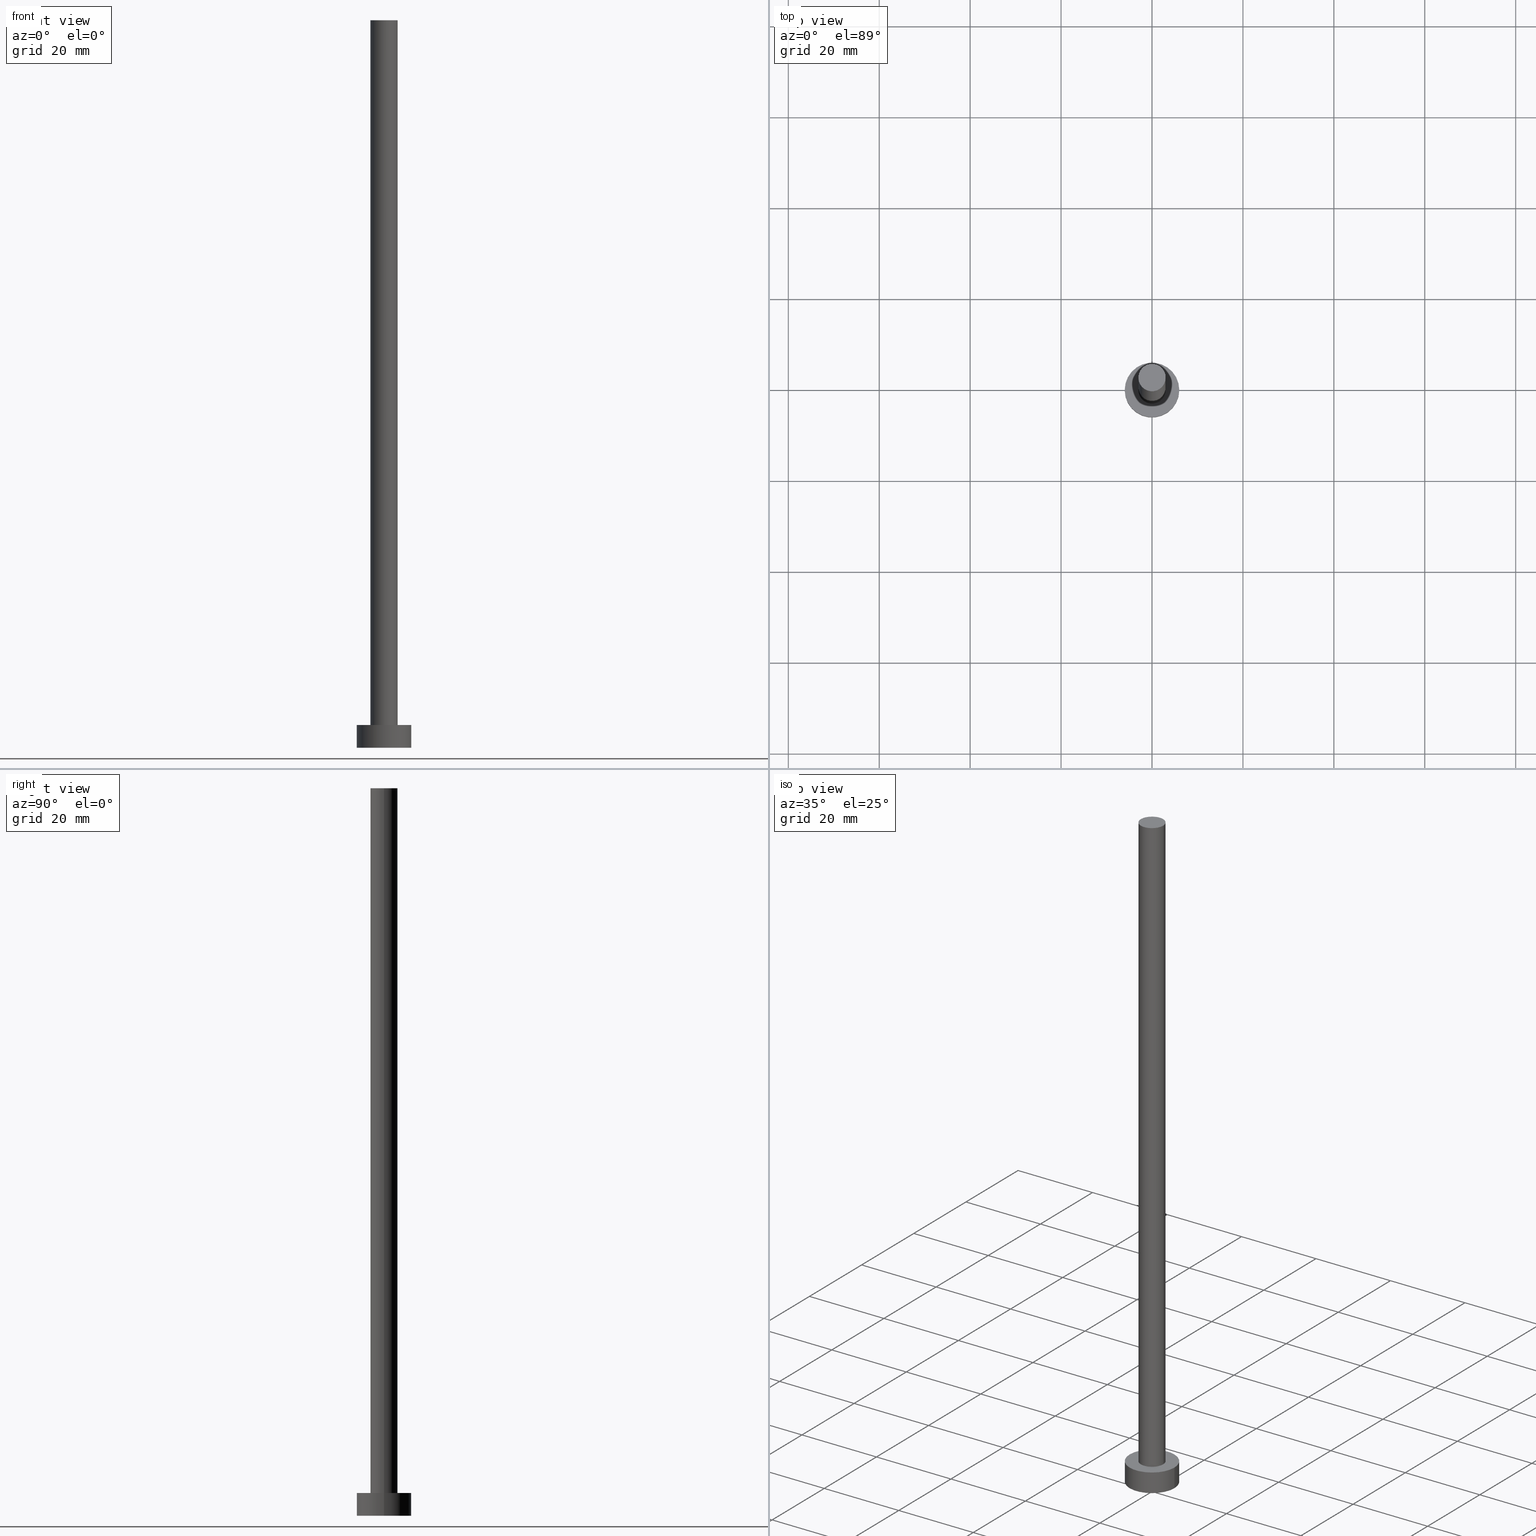
[diagram: canonical four-view strip — front | top / right | iso, engineering-drawing reading convention]
A machine part, canonical four-view strip (front | top / right | iso — engineering-drawing reading convention). The complete STEP part file that produces these views, byte-faithful:
ISO-10303-21;
HEADER;
FILE_DESCRIPTION (( 'STEP AP203' ),
    '1' );
FILE_NAME ('2290.STEP',
    '2023-02-13T15:45:25',
    ( '' ),
    ( '' ),
    'SwSTEP 2.0',
    'SolidWorks 2019',
    '' );
FILE_SCHEMA (( 'CONFIG_CONTROL_DESIGN' ));
ENDSEC;

DATA;
#1 = CARTESIAN_POINT ( 'NONE',  ( 6.000000000000000888, 7.347880794884120722E-16, 0.000000000000000000 ) ) ;
#2 = FACE_BOUND ( 'NONE', #192, .T. ) ;
#3 = DIRECTION ( 'NONE',  ( -1.000000000000000000, 0.000000000000000000, 0.000000000000000000 ) ) ;
#4 = FACE_OUTER_BOUND ( 'NONE', #92, .T. ) ;
#5 = CARTESIAN_POINT ( 'NONE',  ( 3.000000000000000444, 3.673940397442060361E-16, 160.0000000000000000 ) ) ;
#6 = LINE ( 'NONE', #248, #228 ) ;
#7 = PERSON_AND_ORGANIZATION_ROLE ( 'creator' ) ;
#8 = PERSON_AND_ORGANIZATION_ROLE ( 'design_owner' ) ;
#9 = DATE_AND_TIME ( #169, #68 ) ;
#10 = EDGE_CURVE ( 'NONE', #171, #114, #74, .T. ) ;
#11 = CALENDAR_DATE ( 2023, 13, 2 ) ;
#12 = VERTEX_POINT ( 'NONE', #1 ) ;
#13 = DATE_AND_TIME ( #11, #123 ) ;
#14 = CC_DESIGN_PERSON_AND_ORGANIZATION_ASSIGNMENT ( #89, #188, ( #60 ) ) ;
#15 = EDGE_LOOP ( 'NONE', ( #132, #34 ) ) ;
#16 = PERSON_AND_ORGANIZATION_ROLE ( 'classification_officer' ) ;
#17 = DIRECTION ( 'NONE',  ( 0.000000000000000000, 0.000000000000000000, 1.000000000000000000 ) ) ;
#18 = DIRECTION ( 'NONE',  ( -0.000000000000000000, -0.000000000000000000, -1.000000000000000000 ) ) ;
#19 = EDGE_CURVE ( 'NONE', #136, #211, #238, .T. ) ;
#20 = CARTESIAN_POINT ( 'NONE',  ( -3.000000000000000444, 0.000000000000000000, 5.000000000000000000 ) ) ;
#21 = DIRECTION ( 'NONE',  ( 0.000000000000000000, 0.000000000000000000, 1.000000000000000000 ) ) ;
#22 = CARTESIAN_POINT ( 'NONE',  ( 0.000000000000000000, 0.000000000000000000, 5.000000000000000000 ) ) ;
#23 = LINE ( 'NONE', #177, #244 ) ;
#24 = APPROVAL_DATE_TIME ( #30, #35 ) ;
#25 = SECURITY_CLASSIFICATION ( '', '', #210 ) ;
#26 = PERSON_AND_ORGANIZATION ( #124, #31 ) ;
#27 = LINE ( 'NONE', #166, #187 ) ;
#28 = CC_DESIGN_PERSON_AND_ORGANIZATION_ASSIGNMENT ( #231, #16, ( #25 ) ) ;
#29 = APPROVAL_STATUS ( 'not_yet_approved' ) ;
#30 = DATE_AND_TIME ( #131, #42 ) ;
#31 = ORGANIZATION ( 'NEUR�EN�', 'NEUR�EN�', '' ) ;
#32 = EDGE_LOOP ( 'NONE', ( #195, #213 ) ) ;
#33 = PERSON_AND_ORGANIZATION ( #124, #31 ) ;
#34 = ORIENTED_EDGE ( 'NONE', *, *, #19, .T. ) ;
#35 = APPROVAL ( #29, 'NEUR�EN�' ) ;
#36 = ORIENTED_EDGE ( 'NONE', *, *, #240, .T. ) ;
#37 = CARTESIAN_POINT ( 'NONE',  ( -3.000000000000000444, 0.000000000000000000, 160.0000000000000000 ) ) ;
#38 = AXIS2_PLACEMENT_3D ( 'NONE', #22, #98, #183 ) ;
#39 = DIRECTION ( 'NONE',  ( -1.000000000000000000, 0.000000000000000000, 0.000000000000000000 ) ) ;
#40 = DIRECTION ( 'NONE',  ( -0.000000000000000000, -0.000000000000000000, -1.000000000000000000 ) ) ;
#41 = DIRECTION ( 'NONE',  ( -0.000000000000000000, -0.000000000000000000, -1.000000000000000000 ) ) ;
#42 = LOCAL_TIME ( 16, 45, 25.00000000000000000, #186 ) ;
#43 = DIRECTION ( 'NONE',  ( -0.000000000000000000, -0.000000000000000000, -1.000000000000000000 ) ) ;
#44 = EDGE_CURVE ( 'NONE', #12, #176, #69, .T. ) ;
#45 = DIRECTION ( 'NONE',  ( 1.000000000000000000, 0.000000000000000000, -0.000000000000000000 ) ) ;
#46 = AXIS2_PLACEMENT_3D ( 'NONE', #142, #99, #102 ) ;
#47 = DIRECTION ( 'NONE',  ( 1.000000000000000000, 0.000000000000000000, 0.000000000000000000 ) ) ;
#48 = DIRECTION ( 'NONE',  ( -0.000000000000000000, -0.000000000000000000, -1.000000000000000000 ) ) ;
#49 = DATE_AND_TIME ( #108, #141 ) ;
#50 = APPROVAL_PERSON_ORGANIZATION ( #33, #149, #73 ) ;
#51 = ORIENTED_EDGE ( 'NONE', *, *, #19, .F. ) ;
#52 = ADVANCED_FACE ( 'NONE', ( #219 ), #215, .T. ) ;
#53 = EDGE_CURVE ( 'NONE', #176, #12, #225, .T. ) ;
#54 = ORIENTED_EDGE ( 'NONE', *, *, #247, .T. ) ;
#55 = CIRCLE ( 'NONE', #122, 6.000000000000000888 ) ;
#56 = EDGE_LOOP ( 'NONE', ( #51, #113, #234, #255 ) ) ;
#57 = CARTESIAN_POINT ( 'NONE',  ( 0.000000000000000000, 0.000000000000000000, 5.000000000000000000 ) ) ;
#58 = UNCERTAINTY_MEASURE_WITH_UNIT (LENGTH_MEASURE( 1.000000000000000082E-05 ), #223, 'distance_accuracy_value', 'NONE');
#59 = DIRECTION ( 'NONE',  ( 1.000000000000000000, 0.000000000000000000, 0.000000000000000000 ) ) ;
#60 = PRODUCT_DEFINITION ( 'NEZN�M�', '', #64, #165 ) ;
#61 = FACE_OUTER_BOUND ( 'NONE', #32, .T. ) ;
#62 = DIRECTION ( 'NONE',  ( 1.000000000000000000, 0.000000000000000000, 0.000000000000000000 ) ) ;
#63 = CARTESIAN_POINT ( 'NONE',  ( 0.000000000000000000, 0.000000000000000000, 0.000000000000000000 ) ) ;
#64 = PRODUCT_DEFINITION_FORMATION_WITH_SPECIFIED_SOURCE ( 'LIBOVOLN�', '', #227, .NOT_KNOWN. ) ;
#65 = COORDINATED_UNIVERSAL_TIME_OFFSET ( 1, 0, .AHEAD. ) ;
#66 = DIRECTION ( 'NONE',  ( 0.000000000000000000, 0.000000000000000000, 1.000000000000000000 ) ) ;
#67 = EDGE_CURVE ( 'NONE', #136, #12, #116, .T. ) ;
#68 = LOCAL_TIME ( 16, 45, 25.00000000000000000, #65 ) ;
#69 = CIRCLE ( 'NONE', #250, 6.000000000000000888 ) ;
#70 = PERSON_AND_ORGANIZATION_ROLE ( 'design_supplier' ) ;
#71 = CARTESIAN_POINT ( 'NONE',  ( 0.000000000000000000, 0.000000000000000000, 0.000000000000000000 ) ) ;
#72 = COORDINATED_UNIVERSAL_TIME_OFFSET ( 1, 0, .AHEAD. ) ;
#73 = APPROVAL_ROLE ( '' ) ;
#74 = CIRCLE ( 'NONE', #148, 3.000000000000000444 ) ;
#75 = VERTEX_POINT ( 'NONE', #157 ) ;
#76 = ORIENTED_EDGE ( 'NONE', *, *, #163, .F. ) ;
#77 = ADVANCED_FACE ( 'NONE', ( #140 ), #79, .F. ) ;
#78 = ORIENTED_EDGE ( 'NONE', *, *, #90, .F. ) ;
#79 = PLANE ( 'NONE',  #137 ) ;
#80 = CARTESIAN_POINT ( 'NONE',  ( 6.000000000000000888, 7.347880794884120722E-16, 5.000000000000000000 ) ) ;
#81 = ADVANCED_FACE ( 'NONE', ( #2, #100 ), #199, .T. ) ;
#82 = CARTESIAN_POINT ( 'NONE',  ( 0.000000000000000000, 0.000000000000000000, 0.000000000000000000 ) ) ;
#83 = LOCAL_TIME ( 16, 45, 25.00000000000000000, #72 ) ;
#84 = CIRCLE ( 'NONE', #151, 3.000000000000000444 ) ;
#85 = CYLINDRICAL_SURFACE ( 'NONE', #243, 3.000000000000000444 ) ;
#86 = CC_DESIGN_PERSON_AND_ORGANIZATION_ASSIGNMENT ( #203, #8, ( #227 ) ) ;
#87 = CARTESIAN_POINT ( 'NONE',  ( 0.000000000000000000, 0.000000000000000000, 5.000000000000000000 ) ) ;
#88 = APPLICATION_PROTOCOL_DEFINITION ( 'international standard', 'config_control_design', 1994, #201 ) ;
#89 = PERSON_AND_ORGANIZATION ( #124, #31 ) ;
#90 = EDGE_CURVE ( 'NONE', #211, #136, #55, .T. ) ;
#91 = PERSON_AND_ORGANIZATION ( #124, #31 ) ;
#92 = EDGE_LOOP ( 'NONE', ( #134, #138, #173, #36 ) ) ;
#93 = APPROVAL_STATUS ( 'not_yet_approved' ) ;
#94 = AXIS2_PLACEMENT_3D ( 'NONE', #120, #43, #162 ) ;
#95 = EDGE_LOOP ( 'NONE', ( #208, #78, #54, #194 ) ) ;
#96 = AXIS2_PLACEMENT_3D ( 'NONE', #145, #66, #45 ) ;
#97 = ADVANCED_FACE ( 'NONE', ( #4 ), #85, .T. ) ;
#98 = DIRECTION ( 'NONE',  ( -0.000000000000000000, -0.000000000000000000, -1.000000000000000000 ) ) ;
#99 = DIRECTION ( 'NONE',  ( 0.000000000000000000, 0.000000000000000000, 1.000000000000000000 ) ) ;
#100 = FACE_OUTER_BOUND ( 'NONE', #15, .T. ) ;
#101 = CC_DESIGN_SECURITY_CLASSIFICATION ( #25, ( #64 ) ) ;
#102 = DIRECTION ( 'NONE',  ( 1.000000000000000000, 0.000000000000000000, 0.000000000000000000 ) ) ;
#103 = DIRECTION ( 'NONE',  ( 0.000000000000000000, 0.000000000000000000, 1.000000000000000000 ) ) ;
#104 = APPROVAL_ROLE ( '' ) ;
#105 = AXIS2_PLACEMENT_3D ( 'NONE', #129, #147, #251 ) ;
#106 = APPROVAL ( #107, 'NEUR�EN�' ) ;
#107 = APPROVAL_STATUS ( 'not_yet_approved' ) ;
#108 = CALENDAR_DATE ( 2023, 13, 2 ) ;
#109 = DIRECTION ( 'NONE',  ( 0.000000000000000000, 0.000000000000000000, 1.000000000000000000 ) ) ;
#110 = SHAPE_DEFINITION_REPRESENTATION ( #170, #252 ) ;
#111 = ORIENTED_EDGE ( 'NONE', *, *, #53, .F. ) ;
#112 = AXIS2_PLACEMENT_3D ( 'NONE', #63, #125, #62 ) ;
#113 = ORIENTED_EDGE ( 'NONE', *, *, #67, .T. ) ;
#114 = VERTEX_POINT ( 'NONE', #37 ) ;
#115 = CLOSED_SHELL ( 'NONE', ( #52, #126, #130, #81, #77, #97, #216 ) ) ;
#116 = LINE ( 'NONE', #143, #212 ) ;
#117 = CIRCLE ( 'NONE', #105, 3.000000000000000444 ) ;
#118 = CARTESIAN_POINT ( 'NONE',  ( 0.000000000000000000, 0.000000000000000000, 5.000000000000000000 ) ) ;
#119 = CC_DESIGN_PERSON_AND_ORGANIZATION_ASSIGNMENT ( #249, #70, ( #64 ) ) ;
#120 = CARTESIAN_POINT ( 'NONE',  ( 0.000000000000000000, 0.000000000000000000, 160.0000000000000000 ) ) ;
#121 = DIRECTION ( 'NONE',  ( 1.000000000000000000, 0.000000000000000000, 0.000000000000000000 ) ) ;
#122 = AXIS2_PLACEMENT_3D ( 'NONE', #57, #182, #59 ) ;
#123 = LOCAL_TIME ( 16, 45, 25.00000000000000000, #207 ) ;
#124 = PERSON ( 'NEUR�EN�', 'NEUR�EN�', 'NEUR�EN�', ('NEUR�EN�'), ('NEUR�EN�'), ('NEUR�EN�') ) ;
#125 = DIRECTION ( 'NONE',  ( 0.000000000000000000, 0.000000000000000000, 1.000000000000000000 ) ) ;
#126 = ADVANCED_FACE ( 'NONE', ( #239 ), #197, .T. ) ;
#127 = APPLICATION_PROTOCOL_DEFINITION ( 'international standard', 'config_control_design', 1994, #237 ) ;
#128 =( NAMED_UNIT ( * ) SI_UNIT ( $, .STERADIAN. ) SOLID_ANGLE_UNIT ( ) );
#129 = CARTESIAN_POINT ( 'NONE',  ( 0.000000000000000000, 0.000000000000000000, 5.000000000000000000 ) ) ;
#130 = ADVANCED_FACE ( 'NONE', ( #202 ), #200, .T. ) ;
#131 = CALENDAR_DATE ( 2023, 13, 2 ) ;
#132 = ORIENTED_EDGE ( 'NONE', *, *, #90, .T. ) ;
#133 = DATE_AND_TIME ( #253, #83 ) ;
#134 = ORIENTED_EDGE ( 'NONE', *, *, #135, .F. ) ;
#135 = EDGE_CURVE ( 'NONE', #171, #75, #23, .T. ) ;
#136 = VERTEX_POINT ( 'NONE', #80 ) ;
#137 = AXIS2_PLACEMENT_3D ( 'NONE', #82, #21, #236 ) ;
#138 = ORIENTED_EDGE ( 'NONE', *, *, #184, .F. ) ;
#139 = DIRECTION ( 'NONE',  ( 0.000000000000000000, 0.000000000000000000, 1.000000000000000000 ) ) ;
#140 = FACE_OUTER_BOUND ( 'NONE', #153, .T. ) ;
#141 = LOCAL_TIME ( 16, 45, 25.00000000000000000, #164 ) ;
#142 = CARTESIAN_POINT ( 'NONE',  ( 0.000000000000000000, 0.000000000000000000, 5.000000000000000000 ) ) ;
#143 = CARTESIAN_POINT ( 'NONE',  ( 6.000000000000000888, 7.347880794884120722E-16, 5.000000000000000000 ) ) ;
#144 = CARTESIAN_POINT ( 'NONE',  ( 0.000000000000000000, 0.000000000000000000, 5.000000000000000000 ) ) ;
#145 = CARTESIAN_POINT ( 'NONE',  ( 0.000000000000000000, 0.000000000000000000, 160.0000000000000000 ) ) ;
#146 =( NAMED_UNIT ( * ) PLANE_ANGLE_UNIT ( ) SI_UNIT ( $, .RADIAN. ) );
#147 = DIRECTION ( 'NONE',  ( 0.000000000000000000, 0.000000000000000000, 1.000000000000000000 ) ) ;
#148 = AXIS2_PLACEMENT_3D ( 'NONE', #196, #17, #150 ) ;
#149 = APPROVAL ( #93, 'NEUR�EN�' ) ;
#150 = DIRECTION ( 'NONE',  ( 1.000000000000000000, 0.000000000000000000, 0.000000000000000000 ) ) ;
#151 = AXIS2_PLACEMENT_3D ( 'NONE', #158, #103, #198 ) ;
#152 = APPROVAL_DATE_TIME ( #13, #149 ) ;
#153 = EDGE_LOOP ( 'NONE', ( #111, #191 ) ) ;
#154 = MANIFOLD_SOLID_BREP ( 'P�idat vysunut�m3', #115 ) ;
#155 = ORIENTED_EDGE ( 'NONE', *, *, #135, .T. ) ;
#156 = ORIENTED_EDGE ( 'NONE', *, *, #10, .F. ) ;
#157 = CARTESIAN_POINT ( 'NONE',  ( 3.000000000000000444, 3.673940397442060361E-16, 5.000000000000000000 ) ) ;
#158 = CARTESIAN_POINT ( 'NONE',  ( 0.000000000000000000, 0.000000000000000000, 160.0000000000000000 ) ) ;
#159 = CC_DESIGN_DATE_AND_TIME_ASSIGNMENT ( #133, #229, ( #25 ) ) ;
#160 = CARTESIAN_POINT ( 'NONE',  ( -6.000000000000000888, 0.000000000000000000, 5.000000000000000000 ) ) ;
#161 = CARTESIAN_POINT ( 'NONE',  ( 0.000000000000000000, 0.000000000000000000, 0.000000000000000000 ) ) ;
#162 = DIRECTION ( 'NONE',  ( -1.000000000000000000, 0.000000000000000000, 0.000000000000000000 ) ) ;
#163 = EDGE_CURVE ( 'NONE', #75, #209, #217, .T. ) ;
#164 = COORDINATED_UNIVERSAL_TIME_OFFSET ( 1, 0, .AHEAD. ) ;
#165 = DESIGN_CONTEXT ( 'detailed design', #201, 'design' ) ;
#166 = CARTESIAN_POINT ( 'NONE',  ( -3.000000000000000444, 0.000000000000000000, 160.0000000000000000 ) ) ;
#167 = CC_DESIGN_PERSON_AND_ORGANIZATION_ASSIGNMENT ( #91, #7, ( #64 ) ) ;
#168 = DATE_TIME_ROLE ( 'creation_date' ) ;
#169 = CALENDAR_DATE ( 2023, 13, 2 ) ;
#170 = PRODUCT_DEFINITION_SHAPE ( 'NONE', 'NONE',  #60 ) ;
#171 = VERTEX_POINT ( 'NONE', #5 ) ;
#172 = EDGE_LOOP ( 'NONE', ( #156, #155, #232, #233 ) ) ;
#173 = ORIENTED_EDGE ( 'NONE', *, *, #220, .T. ) ;
#174 = AXIS2_PLACEMENT_3D ( 'NONE', #144, #139, #241 ) ;
#175 = APPROVAL_PERSON_ORGANIZATION ( #26, #106, #189 ) ;
#176 = VERTEX_POINT ( 'NONE', #242 ) ;
#177 = CARTESIAN_POINT ( 'NONE',  ( 3.000000000000000444, 3.673940397442060361E-16, 160.0000000000000000 ) ) ;
#178 = DIRECTION ( 'NONE',  ( 0.000000000000000000, 0.000000000000000000, 1.000000000000000000 ) ) ;
#179 = CC_DESIGN_DATE_AND_TIME_ASSIGNMENT ( #9, #168, ( #60 ) ) ;
#180 = AXIS2_PLACEMENT_3D ( 'NONE', #118, #18, #3 ) ;
#181 = AXIS2_PLACEMENT_3D ( 'NONE', #87, #235, #222 ) ;
#182 = DIRECTION ( 'NONE',  ( 0.000000000000000000, 0.000000000000000000, 1.000000000000000000 ) ) ;
#183 = DIRECTION ( 'NONE',  ( -1.000000000000000000, 0.000000000000000000, 0.000000000000000000 ) ) ;
#184 = EDGE_CURVE ( 'NONE', #114, #171, #84, .T. ) ;
#185 = MECHANICAL_CONTEXT ( 'NONE', #237, 'mechanical' ) ;
#186 = COORDINATED_UNIVERSAL_TIME_OFFSET ( 1, 0, .AHEAD. ) ;
#187 = VECTOR ( 'NONE', #48, 1000.000000000000000 ) ;
#188 = PERSON_AND_ORGANIZATION_ROLE ( 'creator' ) ;
#189 = APPROVAL_ROLE ( '' ) ;
#190 = CC_DESIGN_APPROVAL ( #35, ( #64 ) ) ;
#191 = ORIENTED_EDGE ( 'NONE', *, *, #44, .F. ) ;
#192 = EDGE_LOOP ( 'NONE', ( #214, #76 ) ) ;
#193 = CC_DESIGN_APPROVAL ( #106, ( #60 ) ) ;
#194 = ORIENTED_EDGE ( 'NONE', *, *, #53, .T. ) ;
#195 = ORIENTED_EDGE ( 'NONE', *, *, #184, .T. ) ;
#196 = CARTESIAN_POINT ( 'NONE',  ( 0.000000000000000000, 0.000000000000000000, 160.0000000000000000 ) ) ;
#197 = CYLINDRICAL_SURFACE ( 'NONE', #180, 6.000000000000000888 ) ;
#198 = DIRECTION ( 'NONE',  ( 1.000000000000000000, 0.000000000000000000, 0.000000000000000000 ) ) ;
#199 = PLANE ( 'NONE',  #174 ) ;
#200 = CYLINDRICAL_SURFACE ( 'NONE', #38, 6.000000000000000888 ) ;
#201 = APPLICATION_CONTEXT ( 'configuration controlled 3d designs of mechanical parts and assemblies' ) ;
#202 = FACE_OUTER_BOUND ( 'NONE', #95, .T. ) ;
#203 = PERSON_AND_ORGANIZATION ( #124, #31 ) ;
#204 = CC_DESIGN_APPROVAL ( #149, ( #25 ) ) ;
#205 = PLANE ( 'NONE',  #96 ) ;
#206 = APPROVAL_PERSON_ORGANIZATION ( #226, #35, #104 ) ;
#207 = COORDINATED_UNIVERSAL_TIME_OFFSET ( 1, 0, .AHEAD. ) ;
#208 = ORIENTED_EDGE ( 'NONE', *, *, #67, .F. ) ;
#209 = VERTEX_POINT ( 'NONE', #20 ) ;
#210 = SECURITY_CLASSIFICATION_LEVEL ( 'unclassified' ) ;
#211 = VERTEX_POINT ( 'NONE', #160 ) ;
#212 = VECTOR ( 'NONE', #40, 1000.000000000000000 ) ;
#213 = ORIENTED_EDGE ( 'NONE', *, *, #10, .T. ) ;
#214 = ORIENTED_EDGE ( 'NONE', *, *, #240, .F. ) ;
#215 = CYLINDRICAL_SURFACE ( 'NONE', #94, 3.000000000000000444 ) ;
#216 = ADVANCED_FACE ( 'NONE', ( #61 ), #205, .T. ) ;
#217 = CIRCLE ( 'NONE', #46, 3.000000000000000444 ) ;
#218 = CARTESIAN_POINT ( 'NONE',  ( 0.000000000000000000, 0.000000000000000000, 160.0000000000000000 ) ) ;
#219 = FACE_OUTER_BOUND ( 'NONE', #172, .T. ) ;
#220 = EDGE_CURVE ( 'NONE', #114, #209, #27, .T. ) ;
#221 = DIRECTION ( 'NONE',  ( -0.000000000000000000, -0.000000000000000000, -1.000000000000000000 ) ) ;
#222 = DIRECTION ( 'NONE',  ( 1.000000000000000000, 0.000000000000000000, 0.000000000000000000 ) ) ;
#223 =( LENGTH_UNIT ( ) NAMED_UNIT ( * ) SI_UNIT ( .MILLI., .METRE. ) );
#224 = AXIS2_PLACEMENT_3D ( 'NONE', #71, #109, #47 ) ;
#225 = CIRCLE ( 'NONE', #112, 6.000000000000000888 ) ;
#226 = PERSON_AND_ORGANIZATION ( #124, #31 ) ;
#227 = PRODUCT ( '2290', '2290', '', ( #185 ) ) ;
#228 = VECTOR ( 'NONE', #246, 1000.000000000000000 ) ;
#229 = DATE_TIME_ROLE ( 'classification_date' ) ;
#230 = PRODUCT_RELATED_PRODUCT_CATEGORY ( 'detail', '', ( #227 ) ) ;
#231 = PERSON_AND_ORGANIZATION ( #124, #31 ) ;
#232 = ORIENTED_EDGE ( 'NONE', *, *, #163, .T. ) ;
#233 = ORIENTED_EDGE ( 'NONE', *, *, #220, .F. ) ;
#234 = ORIENTED_EDGE ( 'NONE', *, *, #44, .T. ) ;
#235 = DIRECTION ( 'NONE',  ( 0.000000000000000000, 0.000000000000000000, 1.000000000000000000 ) ) ;
#236 = DIRECTION ( 'NONE',  ( 1.000000000000000000, 0.000000000000000000, -0.000000000000000000 ) ) ;
#237 = APPLICATION_CONTEXT ( 'configuration controlled 3d designs of mechanical parts and assemblies' ) ;
#238 = CIRCLE ( 'NONE', #181, 6.000000000000000888 ) ;
#239 = FACE_OUTER_BOUND ( 'NONE', #56, .T. ) ;
#240 = EDGE_CURVE ( 'NONE', #209, #75, #117, .T. ) ;
#241 = DIRECTION ( 'NONE',  ( 1.000000000000000000, 0.000000000000000000, -0.000000000000000000 ) ) ;
#242 = CARTESIAN_POINT ( 'NONE',  ( -6.000000000000000888, 0.000000000000000000, 0.000000000000000000 ) ) ;
#243 = AXIS2_PLACEMENT_3D ( 'NONE', #218, #221, #39 ) ;
#244 = VECTOR ( 'NONE', #41, 1000.000000000000000 ) ;
#245 = APPROVAL_DATE_TIME ( #49, #106 ) ;
#246 = DIRECTION ( 'NONE',  ( -0.000000000000000000, -0.000000000000000000, -1.000000000000000000 ) ) ;
#247 = EDGE_CURVE ( 'NONE', #211, #176, #6, .T. ) ;
#248 = CARTESIAN_POINT ( 'NONE',  ( -6.000000000000000888, 0.000000000000000000, 5.000000000000000000 ) ) ;
#249 = PERSON_AND_ORGANIZATION ( #124, #31 ) ;
#250 = AXIS2_PLACEMENT_3D ( 'NONE', #161, #178, #121 ) ;
#251 = DIRECTION ( 'NONE',  ( 1.000000000000000000, 0.000000000000000000, 0.000000000000000000 ) ) ;
#252 = ADVANCED_BREP_SHAPE_REPRESENTATION ( '2290', ( #154, #224 ), #254 ) ;
#253 = CALENDAR_DATE ( 2023, 13, 2 ) ;
#254 =( GEOMETRIC_REPRESENTATION_CONTEXT ( 3 ) GLOBAL_UNCERTAINTY_ASSIGNED_CONTEXT ( ( #58 ) ) GLOBAL_UNIT_ASSIGNED_CONTEXT ( ( #223, #146, #128 ) ) REPRESENTATION_CONTEXT ( 'NONE', 'WORKASPACE' ) );
#255 = ORIENTED_EDGE ( 'NONE', *, *, #247, .F. ) ;
ENDSEC;
END-ISO-10303-21;
